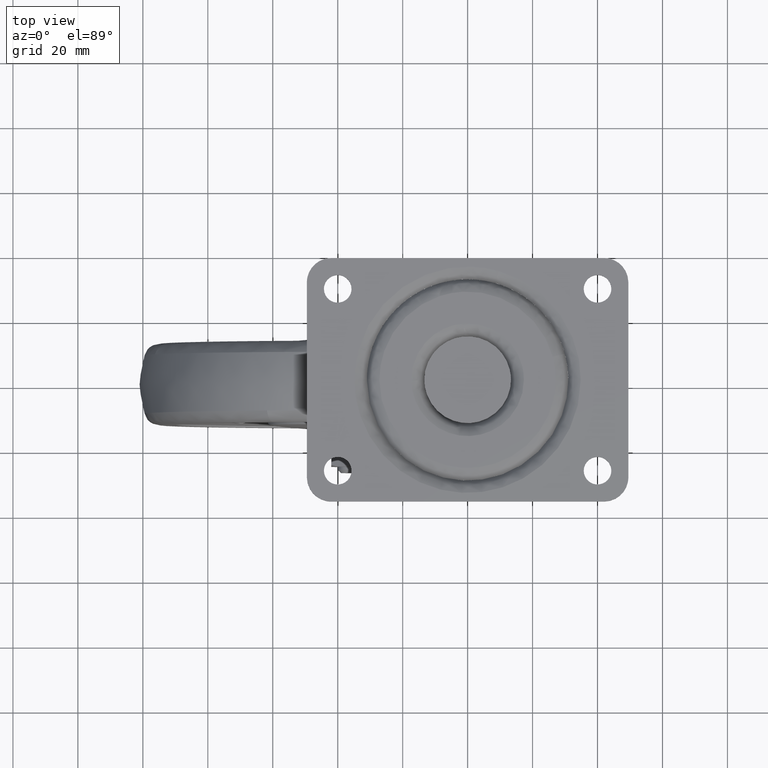
[diagram: clean part render]
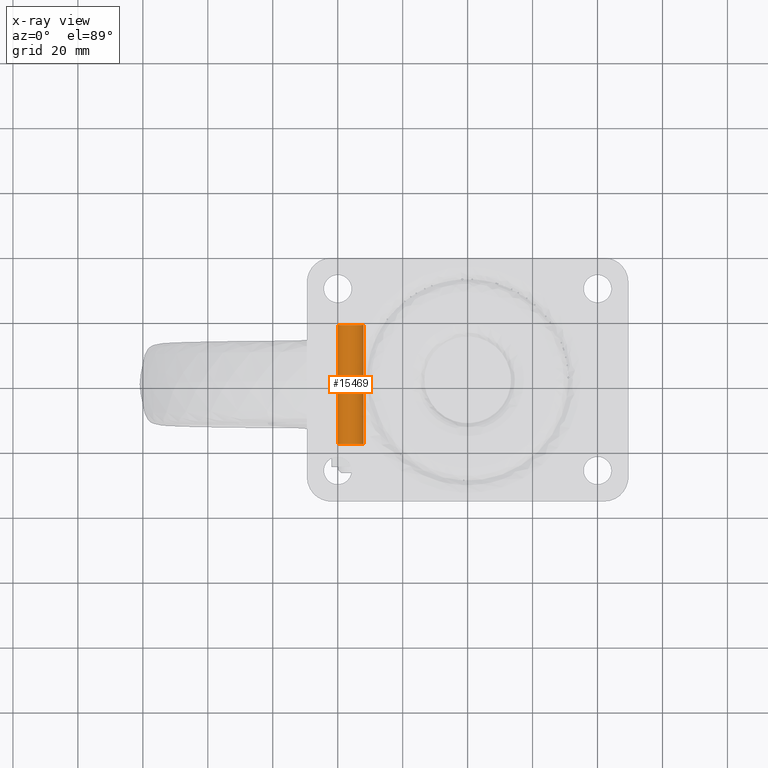
[diagram: x-ray — body ghosted, one internal face saturated and labeled with its STEP entity id]
A machine part, top view, then the same camera in x-ray: the body is ghosted and one INTERNAL B-rep face — a face not visible from any outside direction — is saturated and labeled: STEP entity #15469.
In plain terms, the highlighted face is a freeform B-spline surface patch.
Its self-contained STEP definition (entity closure, byte-faithful):
#15367=CARTESIAN_POINT('',(-32.027961894545342,-19.281181911582149,-84.527849061372976));
#15368=CARTESIAN_POINT('',(-32.014449538205589,-19.281181911582138,-84.641527085448089));
#15369=CARTESIAN_POINT('',(-32.007460806312537,-19.281181911582141,-84.755791841860571));
#15370=CARTESIAN_POINT('',(-31.763266648173111,-19.281181911582138,-88.748331035548034));
#15371=CARTESIAN_POINT('',(-35.755805841860571,-19.281181911582141,-88.992525193687456));
#15372=CARTESIAN_POINT('',(-39.748345035548034,-19.281181911582138,-89.236719351826878));
#15373=CARTESIAN_POINT('',(-39.992539193687463,-19.281181911582141,-85.244180158139415));
#15374=CARTESIAN_POINT('',(-32.027961894545342,19.303633586899284,-84.527849061372976));
#15375=CARTESIAN_POINT('',(-32.014449538205589,19.303633586899277,-84.641527085448089));
#15376=CARTESIAN_POINT('',(-32.007460806312537,19.303633586899281,-84.755791841860571));
#15377=CARTESIAN_POINT('',(-31.763266648173111,19.303633586899281,-88.748331035548034));
#15378=CARTESIAN_POINT('',(-35.755805841860571,19.303633586899281,-88.992525193687456));
#15379=CARTESIAN_POINT('',(-39.748345035548034,19.303633586899281,-89.236719351826878));
#15380=CARTESIAN_POINT('',(-39.992539193687463,19.303633586899281,-85.244180158139415));
#15388=(BOUNDED_SURFACE()B_SPLINE_SURFACE(2,1,((#15367,#15374),(#15368,#15375),(#15369,#15376),(#15370,#15377),(#15371,#15378),(#15372,#15379),(#15373,#15380)),.UNSPECIFIED.,.F.,.F.,.U.)B_SPLINE_SURFACE_WITH_KNOTS((3,2,2,3),(2,2),(0.0,0.265096679918781,6.892513677888295,13.519930675857809),(0.0,38.584815498481433),.UNSPECIFIED.)GEOMETRIC_REPRESENTATION_ITEM()RATIONAL_B_SPLINE_SURFACE(((0.977505800795127,0.977505800795127),(0.988284271247462,0.988284271247462),(1.0,1.0),(0.707106781186548,0.707106781186548),(1.0,1.0),(0.707106781186548,0.707106781186548),(1.0,1.0)))REPRESENTATION_ITEM('')SURFACE());
#15389=CARTESIAN_POINT('',(-32.027961909080453,-18.363042339934751,-84.527848939090660));
#15390=VERTEX_POINT('',#15389);
#15391=CARTESIAN_POINT('',(-36.0,-18.363042339934751,-88.999986000000007));
#15392=VERTEX_POINT('',#15391);
#15393=CARTESIAN_POINT('',(-32.027961909080446,-18.363042339934751,-84.527848939090660));
#15394=CARTESIAN_POINT('',(-32.000000000000007,-18.363042339934751,-84.763089397817296));
#15395=CARTESIAN_POINT('',(-32.0,-18.363042339934751,-84.999985999999993));
#15396=CARTESIAN_POINT('',(-31.999999999999996,-18.363042339934751,-88.999986000000007));
#15397=CARTESIAN_POINT('',(-36.0,-18.363042339934751,-88.999986000000007));
#15405=(BOUNDED_CURVE()B_SPLINE_CURVE(2,(#15393,#15394,#15395,#15396,#15397),.UNSPECIFIED.,.F.,.U.)B_SPLINE_CURVE_WITH_KNOTS((3,2,3),(0.229562463109850,0.250000000000000,0.500000000000000),.UNSPECIFIED.)CURVE()GEOMETRIC_REPRESENTATION_ITEM()RATIONAL_B_SPLINE_CURVE((0.956026733792104,0.976055936142501,1.0,0.707106781186548,1.0))REPRESENTATION_ITEM(''));
#15406=EDGE_CURVE('',#15390,#15392,#15405,.T.);
#15407=ORIENTED_EDGE('',*,*,#15406,.T.);
#15408=CARTESIAN_POINT('',(-39.992539193641953,-18.363042339934751,-85.244180158883523));
#15409=VERTEX_POINT('',#15408);
#15410=CARTESIAN_POINT('',(-36.0,-18.363042339934751,-88.999986000000007));
#15411=CARTESIAN_POINT('',(-39.762824266217571,-18.363042339934758,-88.999986000000007));
#15412=CARTESIAN_POINT('',(-39.992539193641946,-18.363042339934747,-85.244180158883523));
#15420=(BOUNDED_CURVE()B_SPLINE_CURVE(2,(#15410,#15411,#15412),.UNSPECIFIED.,.F.,.U.)B_SPLINE_CURVE_WITH_KNOTS((3,3),(0.500000000000000,0.739332962177652),.UNSPECIFIED.)CURVE()GEOMETRIC_REPRESENTATION_ITEM()RATIONAL_B_SPLINE_CURVE((1.0,0.719603993358517,0.976072041535359))REPRESENTATION_ITEM(''));
#15421=EDGE_CURVE('',#15392,#15409,#15420,.T.);
#15422=ORIENTED_EDGE('',*,*,#15421,.T.);
#15423=CARTESIAN_POINT('',(-39.992539193641953,18.362540525960700,-85.244180158883523));
#15424=VERTEX_POINT('',#15423);
#15425=CARTESIAN_POINT('',(-39.992539193641953,-18.363042339934751,-85.244180158883523));
#15426=CARTESIAN_POINT('',(-39.992539193641953,18.362540525960700,-85.244180158883523));
#15427=QUASI_UNIFORM_CURVE('',1,(#15425,#15426),.UNSPECIFIED.,.F.,.U.);
#15428=EDGE_CURVE('',#15409,#15424,#15427,.T.);
#15429=ORIENTED_EDGE('',*,*,#15428,.T.);
#15430=CARTESIAN_POINT('',(-36.0,18.362540525960700,-88.999986000000007));
#15431=VERTEX_POINT('',#15430);
#15432=CARTESIAN_POINT('',(-36.0,18.362540525960700,-88.999986000000007));
#15433=CARTESIAN_POINT('',(-39.762824266217571,18.362540525960707,-88.999986000000007));
#15434=CARTESIAN_POINT('',(-39.992539193641946,18.362540525960707,-85.244180158883523));
#15442=(BOUNDED_CURVE()B_SPLINE_CURVE(2,(#15432,#15433,#15434),.UNSPECIFIED.,.F.,.U.)B_SPLINE_CURVE_WITH_KNOTS((3,3),(0.500000000000000,0.739332962177652),.UNSPECIFIED.)CURVE()GEOMETRIC_REPRESENTATION_ITEM()RATIONAL_B_SPLINE_CURVE((1.0,0.719603993358517,0.976072041535359))REPRESENTATION_ITEM(''));
#15443=EDGE_CURVE('',#15431,#15424,#15442,.T.);
#15444=ORIENTED_EDGE('',*,*,#15443,.F.);
#15445=CARTESIAN_POINT('',(-32.027961909080453,18.362540525960700,-84.527848939090660));
#15446=VERTEX_POINT('',#15445);
#15447=CARTESIAN_POINT('',(-32.027961909080446,18.362540525960704,-84.527848939090660));
#15448=CARTESIAN_POINT('',(-32.000000000000007,18.362540525960704,-84.763089397817296));
#15449=CARTESIAN_POINT('',(-32.0,18.362540525960700,-84.999985999999993));
#15450=CARTESIAN_POINT('',(-31.999999999999996,18.362540525960707,-88.999986000000007));
#15451=CARTESIAN_POINT('',(-36.0,18.362540525960700,-88.999986000000007));
#15459=(BOUNDED_CURVE()B_SPLINE_CURVE(2,(#15447,#15448,#15449,#15450,#15451),.UNSPECIFIED.,.F.,.U.)B_SPLINE_CURVE_WITH_KNOTS((3,2,3),(0.229562463109850,0.250000000000000,0.500000000000000),.UNSPECIFIED.)CURVE()GEOMETRIC_REPRESENTATION_ITEM()RATIONAL_B_SPLINE_CURVE((0.956026733792104,0.976055936142501,1.0,0.707106781186548,1.0))REPRESENTATION_ITEM(''));
#15460=EDGE_CURVE('',#15446,#15431,#15459,.T.);
#15461=ORIENTED_EDGE('',*,*,#15460,.F.);
#15462=CARTESIAN_POINT('',(-32.027961909080453,-18.363042339934751,-84.527848939090660));
#15463=CARTESIAN_POINT('',(-32.027961909080453,18.362540525960700,-84.527848939090660));
#15464=QUASI_UNIFORM_CURVE('',1,(#15462,#15463),.UNSPECIFIED.,.F.,.U.);
#15465=EDGE_CURVE('',#15390,#15446,#15464,.T.);
#15466=ORIENTED_EDGE('',*,*,#15465,.F.);
#15467=EDGE_LOOP('',(#15407,#15422,#15429,#15444,#15461,#15466));
#15468=FACE_OUTER_BOUND('',#15467,.T.);
#15469=ADVANCED_FACE('',(#15468),#15388,.T.);